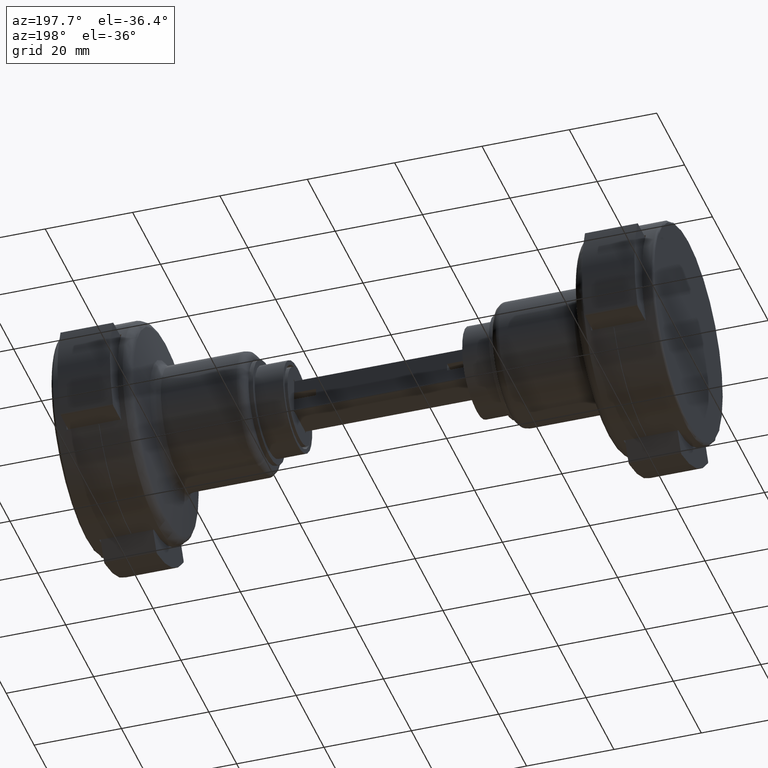
[diagram: clean part render]
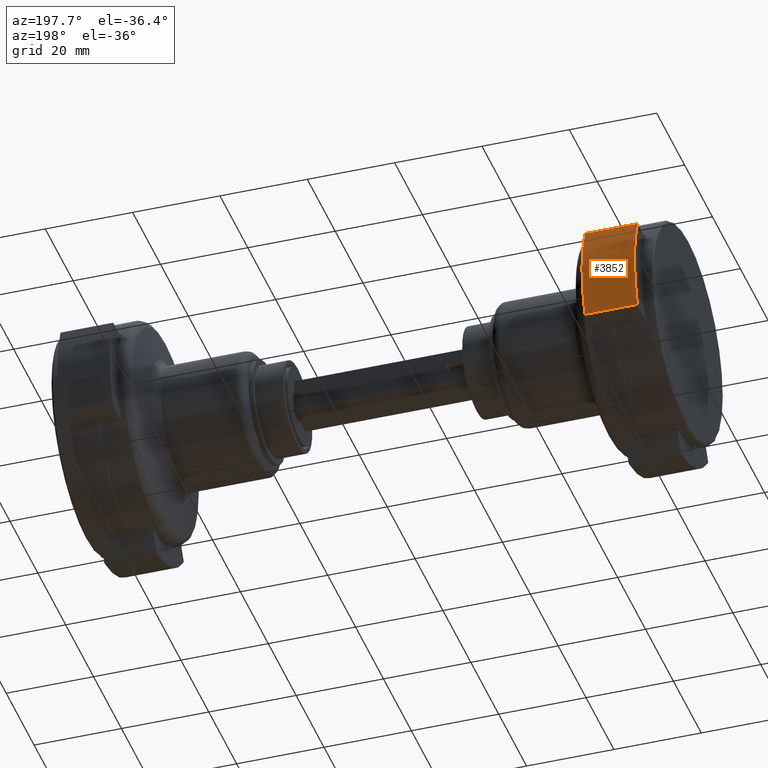
[diagram: same view with one face highlighted and labeled with its STEP entity id]
A machine part, auxiliary view. The second image highlights one B-rep face of the part: STEP entity #3852.
In plain terms, the highlighted cylindrical surface (partial cylindrical patch) has radius 29.6 mm, axis along (-1, 0, 0).
Its self-contained STEP definition (entity closure, byte-faithful):
#536 = AXIS2_PLACEMENT_3D ( 'NONE', #11378, #6459, #12713 ) ;
#625 = CIRCLE ( 'NONE', #13607, 29.60000000000000142 ) ;
#799 = CIRCLE ( 'NONE', #536, 29.60000000000000142 ) ;
#1031 = DIRECTION ( 'NONE',  ( 1.000000000000000000, -1.099986463751428761E-17, 9.376883653928686624E-16 ) ) ;
#1784 = DIRECTION ( 'NONE',  ( -1.000000000000000000, -2.653535394462861221E-15, -9.669911268113957773E-16 ) ) ;
#2346 = DIRECTION ( 'NONE',  ( 9.692327025551826745E-16, 4.163336342344337520E-16, 1.000000000000000000 ) ) ;
#2356 = FACE_OUTER_BOUND ( 'NONE', #11634, .T. ) ;
#2582 = EDGE_CURVE ( 'NONE', #5921, #5278, #625, .T. ) ;
#2990 = DIRECTION ( 'NONE',  ( 9.692327025551826745E-16, 4.163336342344337520E-16, 1.000000000000000000 ) ) ;
#3207 = VECTOR ( 'NONE', #7466, 1000.000000000000000 ) ;
#3214 = ORIENTED_EDGE ( 'NONE', *, *, #11482, .T. ) ;
#3326 = AXIS2_PLACEMENT_3D ( 'NONE', #14551, #2346, #1031 ) ;
#3599 = CARTESIAN_POINT ( 'NONE',  ( 10.93470790377979540, 27.50622044300190439, -4.949999999999795008 ) ) ;
#3852 = ADVANCED_FACE ( 'NONE', ( #2356 ), #5222, .T. ) ;
#3880 = EDGE_CURVE ( 'NONE', #12972, #10312, #799, .T. ) ;
#3917 = LINE ( 'NONE', #11193, #10446 ) ;
#4642 = CARTESIAN_POINT ( 'NONE',  ( 10.93470790377982205, 27.50622044300190083, 7.049999999999993605 ) ) ;
#5222 = CYLINDRICAL_SURFACE ( 'NONE', #3326, 29.60000000000000142 ) ;
#5278 = VERTEX_POINT ( 'NONE', #10925 ) ;
#5921 = VERTEX_POINT ( 'NONE', #3599 ) ;
#6459 = DIRECTION ( 'NONE',  ( 9.692327025551826745E-16, 4.163336342344337520E-16, 1.000000000000000000 ) ) ;
#7466 = DIRECTION ( 'NONE',  ( -9.692327025551826745E-16, -4.163336342344337520E-16, -1.000000000000000000 ) ) ;
#7580 = CARTESIAN_POINT ( 'NONE',  ( -10.93470790378004054, 27.50622044300179780, 7.049999999999993605 ) ) ;
#8641 = CARTESIAN_POINT ( 'NONE',  ( 10.93470790377977053, 27.50622044300190794, -29.76160621783499849 ) ) ;
#9042 = CARTESIAN_POINT ( 'NONE',  ( -4.797701877648145610E-15, -2.060851489460448011E-15, -4.950000000000002842 ) ) ;
#10312 = VERTEX_POINT ( 'NONE', #7580 ) ;
#10446 = VECTOR ( 'NONE', #12583, 1000.000000000000000 ) ;
#10925 = CARTESIAN_POINT ( 'NONE',  ( -10.93470790378006718, 27.50622044300180136, -4.949999999999995737 ) ) ;
#11193 = CARTESIAN_POINT ( 'NONE',  ( -10.93470790378009028, 27.50622044300179780, -29.76160621783499849 ) ) ;
#11378 = CARTESIAN_POINT ( 'NONE',  ( 6.833090553014028339E-15, 2.935152121352757998E-15, 7.049999999999993605 ) ) ;
#11482 = EDGE_CURVE ( 'NONE', #12972, #5921, #15890, .T. ) ;
#11634 = EDGE_LOOP ( 'NONE', ( #15318, #14109, #12444, #3214 ) ) ;
#12444 = ORIENTED_EDGE ( 'NONE', *, *, #3880, .F. ) ;
#12583 = DIRECTION ( 'NONE',  ( 9.692327025551826745E-16, 4.163336342344337520E-16, 1.000000000000000000 ) ) ;
#12713 = DIRECTION ( 'NONE',  ( 1.000000000000000000, -1.099986463751431534E-17, 9.669911268113957773E-16 ) ) ;
#12972 = VERTEX_POINT ( 'NONE', #4642 ) ;
#13607 = AXIS2_PLACEMENT_3D ( 'NONE', #9042, #2990, #1784 ) ;
#13822 = EDGE_CURVE ( 'NONE', #5278, #10312, #3917, .T. ) ;
#14109 = ORIENTED_EDGE ( 'NONE', *, *, #13822, .T. ) ;
#14551 = CARTESIAN_POINT ( 'NONE',  ( -2.884592202689531680E-14, -1.239075767732539297E-14, -29.76160621783499849 ) ) ;
#15318 = ORIENTED_EDGE ( 'NONE', *, *, #2582, .T. ) ;
#15890 = LINE ( 'NONE', #8641, #3207 ) ;